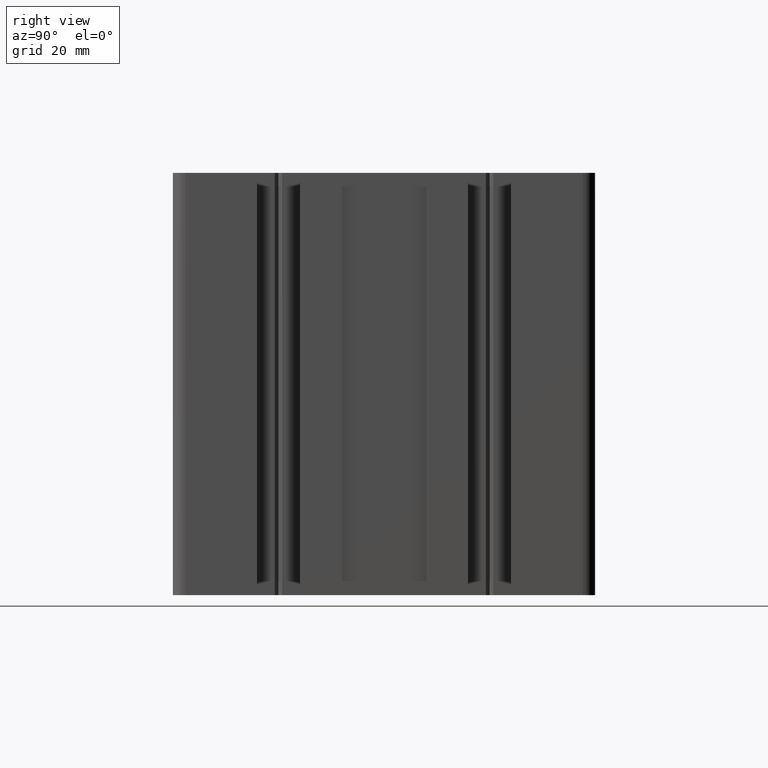
[diagram: clean part render]
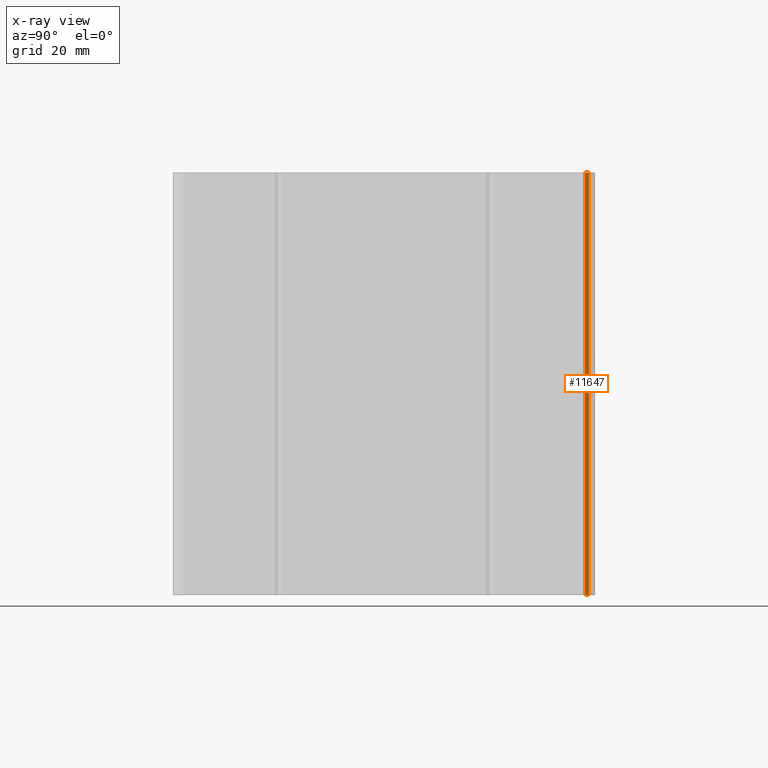
[diagram: x-ray — body ghosted, one internal face saturated and labeled with its STEP entity id]
A machine part, right view, then the same camera in x-ray: the body is ghosted and one INTERNAL B-rep face — a face not visible from any outside direction — is saturated and labeled: STEP entity #11647.
In plain terms, the highlighted planar face has unit normal (1, 0, -0).
Its self-contained STEP definition (entity closure, byte-faithful):
#8864 = VERTEX_POINT ( 'NONE', #15260 ) ;
#8930 = VERTEX_POINT ( 'NONE', #15375 ) ;
#8934 = EDGE_CURVE ( 'NONE', #8930, #8864, #15365, .T. ) ;
#9740 = EDGE_CURVE ( 'NONE', #9770, #9768, #16799, .T. ) ;
#9768 = VERTEX_POINT ( 'NONE', #16857 ) ;
#9770 = VERTEX_POINT ( 'NONE', #16822 ) ;
#11597 = ORIENTED_EDGE ( 'NONE', *, *, #9740, .F. ) ;
#11640 = EDGE_LOOP ( 'NONE', ( #11597, #11649, #11651, #11655 ) ) ;
#11643 = EDGE_CURVE ( 'NONE', #8930, #9770, #19692, .T. ) ;
#11647 = ADVANCED_FACE ( 'NONE', ( #19688 ), #19698, .T. ) ;
#11649 = ORIENTED_EDGE ( 'NONE', *, *, #11643, .F. ) ;
#11650 = EDGE_CURVE ( 'NONE', #8864, #9768, #19686, .T. ) ;
#11651 = ORIENTED_EDGE ( 'NONE', *, *, #8934, .T. ) ;
#11655 = ORIENTED_EDGE ( 'NONE', *, *, #11650, .T. ) ;
#15260 = CARTESIAN_POINT ( 'NONE',  ( -44.00000000000000000, 47.62347538298003300, 100.0000000000000000 ) ) ;
#15357 = DIRECTION ( 'NONE',  ( 0.0000000000000000000, -1.000000000000000000, 0.0000000000000000000 ) ) ;
#15358 = VECTOR ( 'NONE', #15357, 1000.000000000000000 ) ;
#15364 = CARTESIAN_POINT ( 'NONE',  ( -44.00000000000000000, 48.50000000000022000, 100.0000000000000000 ) ) ;
#15365 = LINE ( 'NONE', #15364, #15358 ) ;
#15375 = CARTESIAN_POINT ( 'NONE',  ( -44.00000000000000000, 48.50000000000022000, 100.0000000000000000 ) ) ;
#16796 = DIRECTION ( 'NONE',  ( 0.0000000000000000000, -1.000000000000000000, 0.0000000000000000000 ) ) ;
#16797 = VECTOR ( 'NONE', #16796, 1000.000000000000000 ) ;
#16798 = CARTESIAN_POINT ( 'NONE',  ( -44.00000000000000000, 48.50000000000022000, 0.0000000000000000000 ) ) ;
#16799 = LINE ( 'NONE', #16798, #16797 ) ;
#16822 = CARTESIAN_POINT ( 'NONE',  ( -44.00000000000000000, 48.50000000000022000, 0.0000000000000000000 ) ) ;
#16857 = CARTESIAN_POINT ( 'NONE',  ( -44.00000000000000000, 47.62347538298003300, 0.0000000000000000000 ) ) ;
#19655 = AXIS2_PLACEMENT_3D ( 'NONE', #19685, #19684, #19683 ) ;
#19679 = DIRECTION ( 'NONE',  ( -0.0000000000000000000, -0.0000000000000000000, -1.000000000000000000 ) ) ;
#19680 = VECTOR ( 'NONE', #19679, 1000.000000000000000 ) ;
#19681 = CARTESIAN_POINT ( 'NONE',  ( -44.00000000000000000, 47.62347538298003300, 100.0000000000000000 ) ) ;
#19683 = DIRECTION ( 'NONE',  ( -0.0000000000000000000, 0.0000000000000000000, -1.000000000000000000 ) ) ;
#19684 = DIRECTION ( 'NONE',  ( 1.000000000000000000, 0.0000000000000000000, -0.0000000000000000000 ) ) ;
#19685 = CARTESIAN_POINT ( 'NONE',  ( -44.00000000000000000, 48.50000000000022000, 100.0000000000000000 ) ) ;
#19686 = LINE ( 'NONE', #19681, #19680 ) ;
#19688 = FACE_OUTER_BOUND ( 'NONE', #11640, .T. ) ;
#19689 = DIRECTION ( 'NONE',  ( -0.0000000000000000000, -0.0000000000000000000, -1.000000000000000000 ) ) ;
#19690 = VECTOR ( 'NONE', #19689, 1000.000000000000000 ) ;
#19691 = CARTESIAN_POINT ( 'NONE',  ( -44.00000000000000000, 48.50000000000022000, 100.0000000000000000 ) ) ;
#19692 = LINE ( 'NONE', #19691, #19690 ) ;
#19698 = PLANE ( 'NONE',  #19655 ) ;